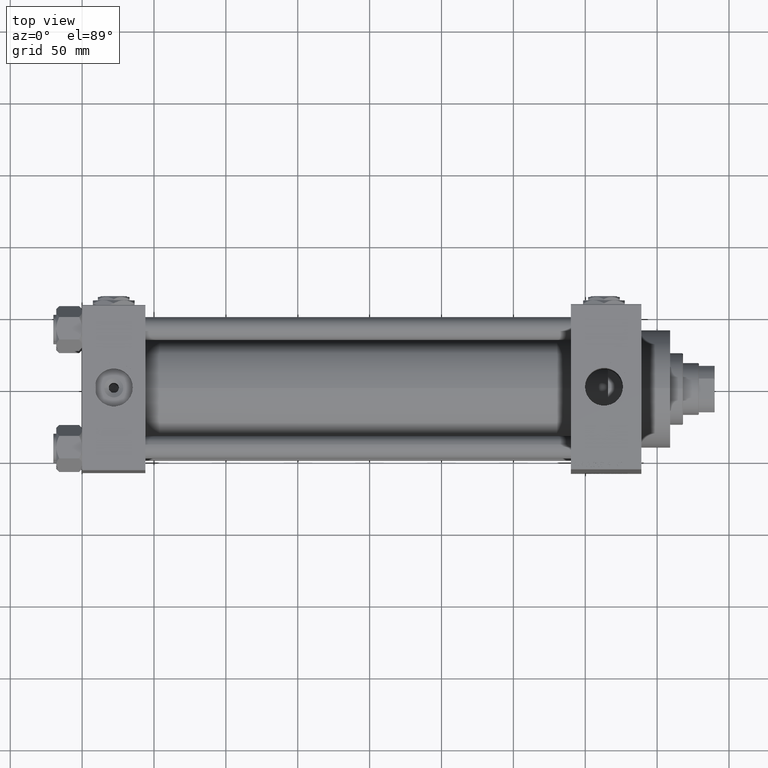
[diagram: clean part render]
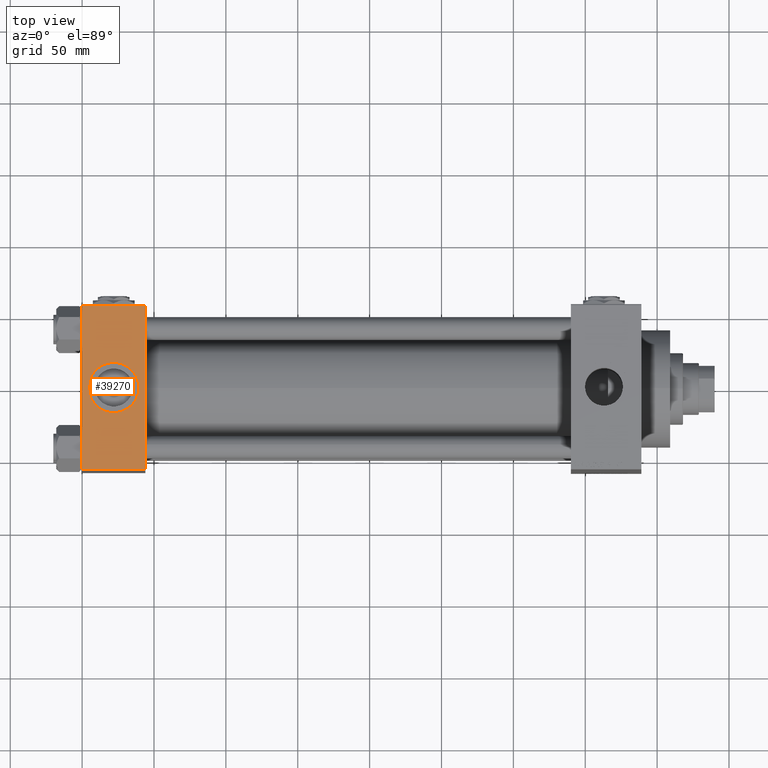
[diagram: same view with one face highlighted and labeled with its STEP entity id]
A machine part, top view. The second image highlights one B-rep face of the part: STEP entity #39270.
In plain terms, the highlighted planar face has unit normal (0, 0, -1).
Its self-contained STEP definition (entity closure, byte-faithful):
#5 = FACE_OUTER_BOUND ( 'NONE', #35524, .T. ) ;
#1436 = VERTEX_POINT ( 'NONE', #28128 ) ;
#1961 = DIRECTION ( 'NONE',  ( 0.000000000000000000, -1.000000000000000000, -1.206764157201257045E-16 ) ) ;
#3316 = ORIENTED_EDGE ( 'NONE', *, *, #29102, .T. ) ;
#3718 = VERTEX_POINT ( 'NONE', #42139 ) ;
#4379 = ORIENTED_EDGE ( 'NONE', *, *, #20429, .T. ) ;
#5434 = EDGE_CURVE ( 'NONE', #26137, #3718, #21130, .T. ) ;
#5975 = CARTESIAN_POINT ( 'NONE',  ( 22.00000000000000000, -8.673617379884035472E-15, 57.50000000000000000 ) ) ;
#6855 = ORIENTED_EDGE ( 'NONE', *, *, #35576, .T. ) ;
#7474 = AXIS2_PLACEMENT_3D ( 'NONE', #25866, #30397, #10497 ) ;
#7829 = DIRECTION ( 'NONE',  ( 0.000000000000000000, 1.206764157201257045E-16, -1.000000000000000000 ) ) ;
#8384 = DIRECTION ( 'NONE',  ( 0.000000000000000000, -1.000000000000000000, -1.206764157201257045E-16 ) ) ;
#10004 = DIRECTION ( 'NONE',  ( 0.000000000000000000, 0.000000000000000000, 1.000000000000000000 ) ) ;
#10432 = CARTESIAN_POINT ( 'NONE',  ( 0.000000000000000000, 57.00000000000000711, 57.50000000000000711 ) ) ;
#10497 = DIRECTION ( 'NONE',  ( 1.000000000000000000, 0.000000000000000000, 0.000000000000000000 ) ) ;
#12436 = ORIENTED_EDGE ( 'NONE', *, *, #5434, .F. ) ;
#12921 = VECTOR ( 'NONE', #19032, 1000.000000000000000 ) ;
#15388 = PLANE ( 'NONE',  #24493 ) ;
#15522 = DIRECTION ( 'NONE',  ( 1.000000000000000000, 0.000000000000000000, 0.000000000000000000 ) ) ;
#18314 = DIRECTION ( 'NONE',  ( 1.000000000000000000, 0.000000000000000000, 0.000000000000000000 ) ) ;
#19032 = DIRECTION ( 'NONE',  ( -1.000000000000000000, 0.000000000000000000, 0.000000000000000000 ) ) ;
#19424 = CARTESIAN_POINT ( 'NONE',  ( 44.00000000000000000, 57.49999999999999289, 57.50000000000000711 ) ) ;
#20429 = EDGE_CURVE ( 'NONE', #26137, #35295, #42421, .T. ) ;
#21130 = LINE ( 'NONE', #21623, #25377 ) ;
#21623 = CARTESIAN_POINT ( 'NONE',  ( 44.00000000000000000, 57.49999999999999289, 57.50000000000000711 ) ) ;
#23199 = DIRECTION ( 'NONE',  ( 0.000000000000000000, 1.000000000000000000, 1.206764157201257045E-16 ) ) ;
#23558 = VECTOR ( 'NONE', #15522, 1000.000000000000000 ) ;
#24493 = AXIS2_PLACEMENT_3D ( 'NONE', #19424, #7829, #23199 ) ;
#25377 = VECTOR ( 'NONE', #1961, 1000.000000000000000 ) ;
#25866 = CARTESIAN_POINT ( 'NONE',  ( 22.00000000000000000, -8.673617379884035472E-15, 57.50000000000000000 ) ) ;
#26137 = VERTEX_POINT ( 'NONE', #32436 ) ;
#26927 = AXIS2_PLACEMENT_3D ( 'NONE', #5975, #10004, #18314 ) ;
#27247 = VERTEX_POINT ( 'NONE', #32538 ) ;
#28128 = CARTESIAN_POINT ( 'NONE',  ( 0.000000000000000000, -57.00000000000003553, 57.49999999999999289 ) ) ;
#28917 = EDGE_CURVE ( 'NONE', #27247, #48188, #46849, .T. ) ;
#29102 = EDGE_CURVE ( 'NONE', #1436, #3718, #30641, .T. ) ;
#29107 = CARTESIAN_POINT ( 'NONE',  ( 4.499999999999997335, -6.530485481376167224E-15, 57.50000000000000000 ) ) ;
#30397 = DIRECTION ( 'NONE',  ( 0.000000000000000000, 0.000000000000000000, 1.000000000000000000 ) ) ;
#30641 = LINE ( 'NONE', #38433, #23558 ) ;
#32084 = ORIENTED_EDGE ( 'NONE', *, *, #42456, .F. ) ;
#32436 = CARTESIAN_POINT ( 'NONE',  ( 44.00000000000000000, 57.00000000000000711, 57.50000000000000711 ) ) ;
#32538 = CARTESIAN_POINT ( 'NONE',  ( 39.50000000000000000, -8.673617379884035472E-15, 57.50000000000000000 ) ) ;
#34529 = FACE_BOUND ( 'NONE', #48473, .T. ) ;
#34872 = CARTESIAN_POINT ( 'NONE',  ( 0.000000000000000000, 57.00000000000000711, 57.50000000000000711 ) ) ;
#35295 = VERTEX_POINT ( 'NONE', #10432 ) ;
#35321 = CARTESIAN_POINT ( 'NONE',  ( 0.000000000000000000, 57.49999999999999289, 57.50000000000000711 ) ) ;
#35524 = EDGE_LOOP ( 'NONE', ( #6855, #3316, #12436, #4379 ) ) ;
#35576 = EDGE_CURVE ( 'NONE', #35295, #1436, #39348, .T. ) ;
#38433 = CARTESIAN_POINT ( 'NONE',  ( 44.00000000000000000, -57.00000000000003553, 57.49999999999999289 ) ) ;
#39270 = ADVANCED_FACE ( 'NONE', ( #34529, #5 ), #15388, .F. ) ;
#39348 = LINE ( 'NONE', #35321, #39647 ) ;
#39647 = VECTOR ( 'NONE', #8384, 1000.000000000000000 ) ;
#42139 = CARTESIAN_POINT ( 'NONE',  ( 44.00000000000000000, -57.00000000000003553, 57.49999999999999289 ) ) ;
#42421 = LINE ( 'NONE', #34872, #12921 ) ;
#42456 = EDGE_CURVE ( 'NONE', #48188, #27247, #45419, .T. ) ;
#45419 = CIRCLE ( 'NONE', #26927, 17.50000000000000000 ) ;
#46849 = CIRCLE ( 'NONE', #7474, 17.50000000000000000 ) ;
#48188 = VERTEX_POINT ( 'NONE', #29107 ) ;
#48473 = EDGE_LOOP ( 'NONE', ( #48888, #32084 ) ) ;
#48888 = ORIENTED_EDGE ( 'NONE', *, *, #28917, .F. ) ;